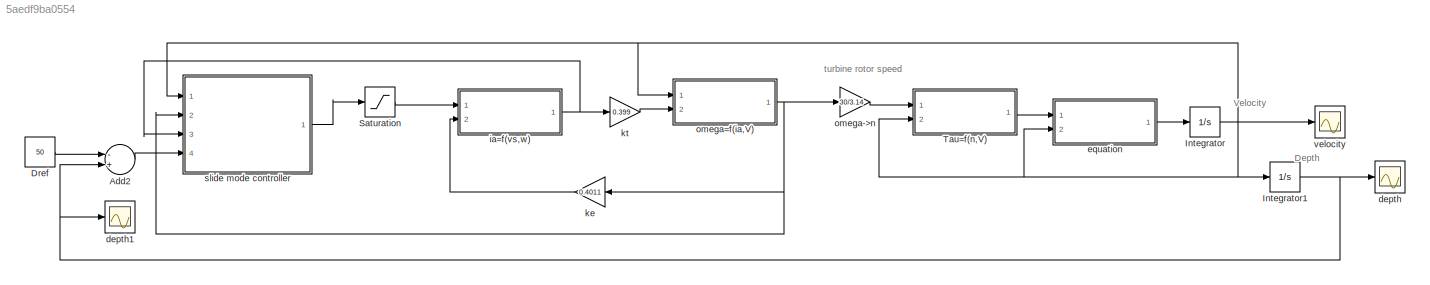
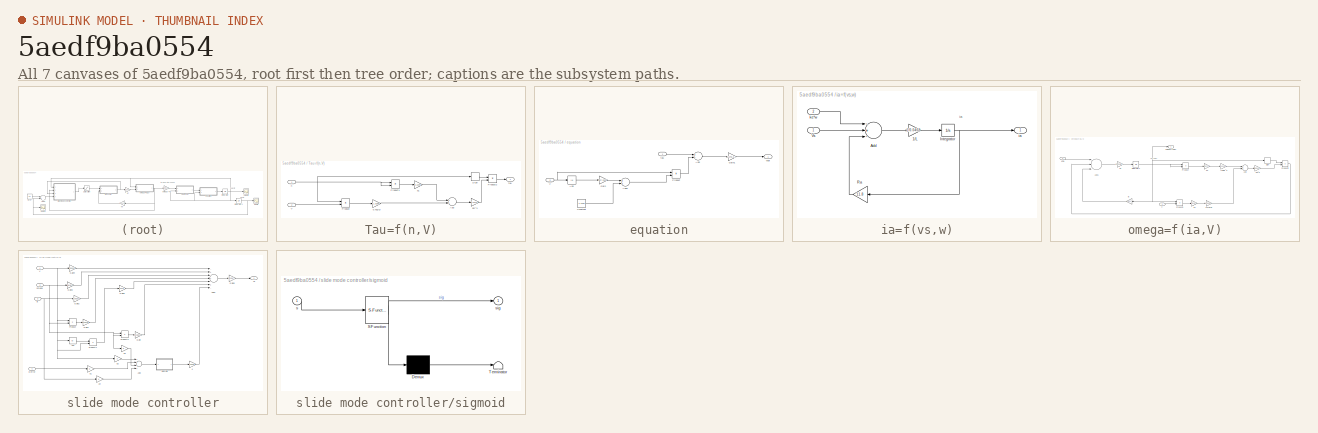
[diagram: thumbnail index - all 7 canvases of the model, root first then tree order]
MODEL slx_5aedf9ba0554
KIND model
CONFIG AbsTol = auto
CONFIG FixedStep = 1e-15
CONFIG MaxStep = auto
CONFIG MinStep = auto
CONFIG RelTol = 1e-3
CONFIG SampleTimeConstraint = Unconstrained
CONFIG Solver = VariableStepAuto
CONFIG SolverMode = Auto
CONFIG SolverName = VariableStepAuto
CONFIG StartTime = 0.0
CONFIG StopTime = 200
BLOCK [Sum] Add2
  InputSameDT = off
  Inputs = -+
  OutDataTypeStr = Inherit: Inherit via internal rule
  Ports = [2, 1]
  SaturateOnIntegerOverflow = off
BLOCK [Constant] Dref
  Value = 50
BLOCK [Integrator] Integrator
  Ports = [1, 1]
BLOCK [Integrator] Integrator1
  Ports = [1, 1]
BLOCK [Saturate] Saturation
  InputPortMap = u0
  LowerLimit = -100
  Ports = [1, 1]
  UpperLimit = 100
BLOCK [SubSystem] Tau=f(n,V)
  Ports = [2, 1]
  RequestExecContextInheritance = off
  Variant = off
BLOCK [Gain] Tau=f(n,V)/0.7a2//D
  Gain = -1.0366
  OutDataTypeStr = Inherit: Inherit via internal rule
  ParamDataTypeStr = Inherit: Inherit via internal rule
  SaturateOnIntegerOverflow = off
BLOCK [Sum] Tau=f(n,V)/Add
  InputSameDT = off
  OutDataTypeStr = Inherit: Inherit via internal rule
  Ports = [2, 1]
  SaturateOnIntegerOverflow = off
BLOCK [Product] Tau=f(n,V)/Product
  InputSameDT = off
  OutDataTypeStr = Inherit: Inherit via internal rule
  Ports = [2, 1]
  RndMeth = Floor
  SaturateOnIntegerOverflow = off
BLOCK [Product] Tau=f(n,V)/Product1
  InputSameDT = off
  OutDataTypeStr = Inherit: Inherit via internal rule
  Ports = [2, 1]
  RndMeth = Floor
  SaturateOnIntegerOverflow = off
BLOCK [Product] Tau=f(n,V)/Product2
  InputSameDT = off
  OutDataTypeStr = Inherit: Inherit via internal rule
  Ports = [2, 1]
  RndMeth = Floor
  SaturateOnIntegerOverflow = off
BLOCK [Signum] Tau=f(n,V)/Sign
BLOCK [Inport] Tau=f(n,V)/V
  IconDisplay = Port number
  Port = 2
BLOCK [Gain] Tau=f(n,V)/a1
  Gain = 0.2299
  OutDataTypeStr = Inherit: Inherit via internal rule
  ParamDataTypeStr = Inherit: Inherit via internal rule
  SaturateOnIntegerOverflow = off
BLOCK [Inport] Tau=f(n,V)/n
  IconDisplay = Port number
BLOCK [Gain] Tau=f(n,V)/pD^4
  Gain = 0.5471
  OutDataTypeStr = Inherit: Inherit via internal rule
  ParamDataTypeStr = Inherit: Inherit via internal rule
  SaturateOnIntegerOverflow = off
BLOCK [Outport] Tau=f(n,V)/tau
  IconDisplay = Port number
BLOCK [Scope] depth
  Ports = [1]
  ScopeSpecificationString = Simulink.scopes.TimeScopeBlockCfg('CurrentConfiguration', extmgr.ConfigurationSet(extmgr.Configuration('Core','General UI',true),extmgr.Configuration('Core','Source UI',true),extmgr.Configuration('Sources','WiredSimulink',true,'DataLoggingVariableName','ScopeData1'),extmgr.Configuration('Visuals','Time Domain',true,'SerializedDisplays',{struct('MinYLimReal','-6.28788','MaxYLimReal','56.59091','YLa...<+1449ch>
BLOCK [Scope] depth1
  Ports = [1]
  ScopeSpecificationString = Simulink.scopes.TimeScopeBlockCfg('CurrentConfiguration', extmgr.ConfigurationSet(extmgr.Configuration('Core','General UI',true),extmgr.Configuration('Core','Source UI',true),extmgr.Configuration('Sources','WiredSimulink',true,'DataLoggingVariableName','ScopeData1','DataLogging',true,'DataLoggingSaveFormat','Array'),extmgr.Configuration('Visuals','Time Domain',true,'SerializedDisplays',{struct('Mi...<+1502ch>
BLOCK [SubSystem] equation
  Ports = [2, 1]
  RequestExecContextInheritance = off
  Variant = off
BLOCK [Abs] equation/Abs
  SaturateOnIntegerOverflow = off
BLOCK [Sum] equation/Add
  InputSameDT = off
  Inputs = +-
  OutDataTypeStr = Inherit: Inherit via internal rule
  Ports = [2, 1]
  SaturateOnIntegerOverflow = off
BLOCK [Sum] equation/Add1
  InputSameDT = off
  OutDataTypeStr = Inherit: Inherit via internal rule
  Ports = [2, 1]
  SaturateOnIntegerOverflow = off
BLOCK [Constant] equation/Constant
  Value = 4.4132
BLOCK [Gain] equation/Gain
  Gain = 327.2375
  OutDataTypeStr = Inherit: Inherit via internal rule
  ParamDataTypeStr = Inherit: Inherit via internal rule
  SaturateOnIntegerOverflow = off
BLOCK [Gain] equation/Gain1
  Gain = 1/275.5760
  OutDataTypeStr = Inherit: Inherit via internal rule
  ParamDataTypeStr = Inherit: Inherit via internal rule
  SaturateOnIntegerOverflow = off
BLOCK [Product] equation/Product
  InputSameDT = off
  OutDataTypeStr = Inherit: Inherit via internal rule
  Ports = [2, 1]
  RndMeth = Floor
  SaturateOnIntegerOverflow = off
BLOCK [Inport] equation/V
  IconDisplay = Port number
  Port = 2
BLOCK [Inport] equation/tau
  IconDisplay = Port number
BLOCK [Outport] equation/vdot
  IconDisplay = Port number
BLOCK [SubSystem] ia=f(vs,w)
  Ports = [2, 1]
  RequestExecContextInheritance = off
  Variant = off
BLOCK [Gain] ia=f(vs,w)/1//L
  Gain = 1/0.0468
  OutDataTypeStr = Inherit: Inherit via internal rule
  ParamDataTypeStr = Inherit: Inherit via internal rule
  SaturateOnIntegerOverflow = off
BLOCK [Sum] ia=f(vs,w)/Add
  InputSameDT = off
  Inputs = -+-
  OutDataTypeStr = Inherit: Inherit via internal rule
  Ports = [3, 1]
  SaturateOnIntegerOverflow = off
BLOCK [Integrator] ia=f(vs,w)/Integrator
  Ports = [1, 1]
BLOCK [Gain] ia=f(vs,w)/Ra
  Gain = 11.8
  OutDataTypeStr = Inherit: Inherit via internal rule
  ParamDataTypeStr = Inherit: Inherit via internal rule
  SaturateOnIntegerOverflow = off
BLOCK [Inport] ia=f(vs,w)/Vs
  IconDisplay = Port number
BLOCK [Outport] ia=f(vs,w)/ia
  IconDisplay = Port number
BLOCK [Inport] ia=f(vs,w)/ke*w
  IconDisplay = Port number
  Port = 2
BLOCK [Gain] ke
  Gain = 0.4011
  OutDataTypeStr = Inherit: Inherit via internal rule
  ParamDataTypeStr = Inherit: Inherit via internal rule
  SaturateOnIntegerOverflow = off
BLOCK [Gain] kt
  Gain = 0.399
  OutDataTypeStr = Inherit: Inherit via internal rule
  ParamDataTypeStr = Inherit: Inherit via internal rule
  SaturateOnIntegerOverflow = off
BLOCK [Gain] omega->n
  Gain = 30/3.14
  OutDataTypeStr = Inherit: Inherit via internal rule
  ParamDataTypeStr = Inherit: Inherit via internal rule
  SaturateOnIntegerOverflow = off
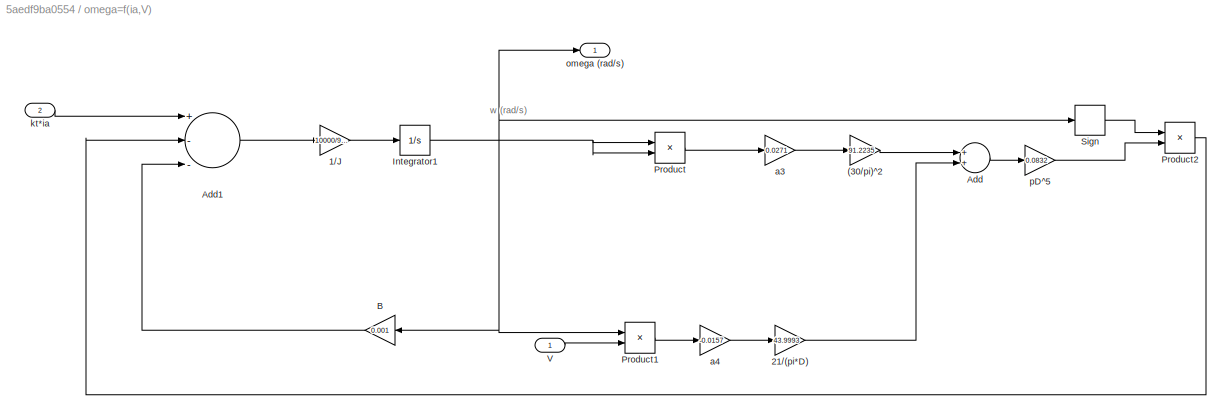
BLOCK [SubSystem] omega=f(ia,V)
  Ports = [2, 1]
  RequestExecContextInheritance = off
  Variant = off
BLOCK [Gain] omega=f(ia,V)/(30//pi)^2
  Gain = 91.2235
  OutDataTypeStr = Inherit: Inherit via internal rule
  ParamDataTypeStr = Inherit: Inherit via internal rule
  SaturateOnIntegerOverflow = off
BLOCK [Gain] omega=f(ia,V)/1//J
  Gain = 10000/9.275
  OutDataTypeStr = Inherit: Inherit via internal rule
  ParamDataTypeStr = Inherit: Inherit via internal rule
  SaturateOnIntegerOverflow = off
BLOCK [Gain] omega=f(ia,V)/21//(pi*D)
  Gain = 43.9993
  OutDataTypeStr = Inherit: Inherit via internal rule
  ParamDataTypeStr = Inherit: Inherit via internal rule
  SaturateOnIntegerOverflow = off
BLOCK [Sum] omega=f(ia,V)/Add
  InputSameDT = off
  OutDataTypeStr = Inherit: Inherit via internal rule
  Ports = [2, 1]
  SaturateOnIntegerOverflow = off
BLOCK [Sum] omega=f(ia,V)/Add1
  InputSameDT = off
  Inputs = +--
  OutDataTypeStr = Inherit: Inherit via internal rule
  Ports = [3, 1]
  SaturateOnIntegerOverflow = off
BLOCK [Gain] omega=f(ia,V)/B
  Gain = 0.001
  OutDataTypeStr = Inherit: Inherit via internal rule
  ParamDataTypeStr = Inherit: Inherit via internal rule
  SaturateOnIntegerOverflow = off
BLOCK [Integrator] omega=f(ia,V)/Integrator1
  Ports = [1, 1]
BLOCK [Product] omega=f(ia,V)/Product
  InputSameDT = off
  OutDataTypeStr = Inherit: Inherit via internal rule
  Ports = [2, 1]
  RndMeth = Floor
  SaturateOnIntegerOverflow = off
BLOCK [Product] omega=f(ia,V)/Product1
  InputSameDT = off
  OutDataTypeStr = Inherit: Inherit via internal rule
  Ports = [2, 1]
  RndMeth = Floor
  SaturateOnIntegerOverflow = off
BLOCK [Product] omega=f(ia,V)/Product2
  InputSameDT = off
  OutDataTypeStr = Inherit: Inherit via internal rule
  Ports = [2, 1]
  RndMeth = Floor
  SaturateOnIntegerOverflow = off
BLOCK [Signum] omega=f(ia,V)/Sign
BLOCK [Inport] omega=f(ia,V)/V
  IconDisplay = Port number
BLOCK [Gain] omega=f(ia,V)/a3
  Gain = 0.0271
  OutDataTypeStr = Inherit: Inherit via internal rule
  ParamDataTypeStr = Inherit: Inherit via internal rule
  SaturateOnIntegerOverflow = off
BLOCK [Gain] omega=f(ia,V)/a4
  Gain = -0.0157
  OutDataTypeStr = Inherit: Inherit via internal rule
  ParamDataTypeStr = Inherit: Inherit via internal rule
  SaturateOnIntegerOverflow = off
BLOCK [Inport] omega=f(ia,V)/kt*ia
  IconDisplay = Port number
  Port = 2
BLOCK [Outport] omega=f(ia,V)/omega (rad//s)
  IconDisplay = Port number
BLOCK [Gain] omega=f(ia,V)/pD^5
  Gain = 0.0832
  OutDataTypeStr = Inherit: Inherit via internal rule
  ParamDataTypeStr = Inherit: Inherit via internal rule
  SaturateOnIntegerOverflow = off
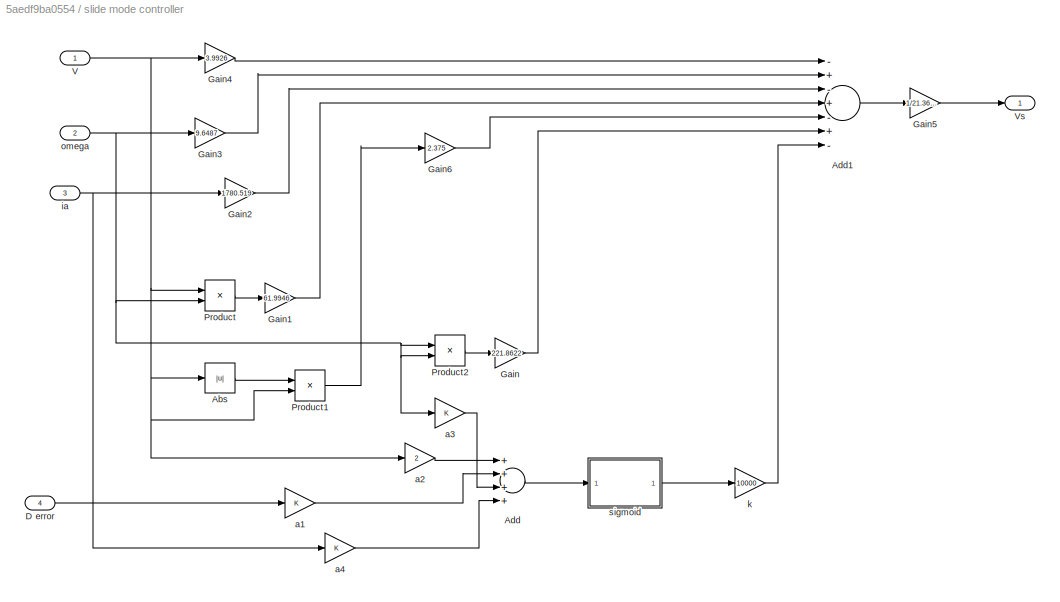
BLOCK [SubSystem] slide mode controller
  Ports = [4, 1]
  RequestExecContextInheritance = off
  Variant = off
BLOCK [Abs] slide mode controller/Abs
  SaturateOnIntegerOverflow = off
BLOCK [Sum] slide mode controller/Add
  InputSameDT = off
  Inputs = ++++
  OutDataTypeStr = Inherit: Inherit via internal rule
  Ports = [4, 1]
  SaturateOnIntegerOverflow = off
BLOCK [Sum] slide mode controller/Add1
  InputSameDT = off
  Inputs = -+-+-+-
  OutDataTypeStr = Inherit: Inherit via internal rule
  Ports = [7, 1]
  SaturateOnIntegerOverflow = off
BLOCK [Inport] slide mode controller/D error
  IconDisplay = Port number
  Port = 4
BLOCK [Gain] slide mode controller/Gain
  Gain = 221.8622
  OutDataTypeStr = Inherit: Inherit via internal rule
  ParamDataTypeStr = Inherit: Inherit via internal rule
  SaturateOnIntegerOverflow = off
BLOCK [Gain] slide mode controller/Gain1
  Gain = 61.9946
  OutDataTypeStr = Inherit: Inherit via internal rule
  ParamDataTypeStr = Inherit: Inherit via internal rule
  SaturateOnIntegerOverflow = off
BLOCK [Gain] slide mode controller/Gain2
  Gain = 1780.519
  OutDataTypeStr = Inherit: Inherit via internal rule
  ParamDataTypeStr = Inherit: Inherit via internal rule
  SaturateOnIntegerOverflow = off
BLOCK [Gain] slide mode controller/Gain3
  Gain = 9.6487
  OutDataTypeStr = Inherit: Inherit via internal rule
  ParamDataTypeStr = Inherit: Inherit via internal rule
  SaturateOnIntegerOverflow = off
BLOCK [Gain] slide mode controller/Gain4
  Gain = 3.9926
  OutDataTypeStr = Inherit: Inherit via internal rule
  ParamDataTypeStr = Inherit: Inherit via internal rule
  SaturateOnIntegerOverflow = off
BLOCK [Gain] slide mode controller/Gain5
  Gain = 1/21.3675
  OutDataTypeStr = Inherit: Inherit via internal rule
  ParamDataTypeStr = Inherit: Inherit via internal rule
  SaturateOnIntegerOverflow = off
BLOCK [Gain] slide mode controller/Gain6
  Gain = 2.375
  OutDataTypeStr = Inherit: Inherit via internal rule
  ParamDataTypeStr = Inherit: Inherit via internal rule
  SaturateOnIntegerOverflow = off
BLOCK [Product] slide mode controller/Product
  InputSameDT = off
  OutDataTypeStr = Inherit: Inherit via internal rule
  Ports = [2, 1]
  RndMeth = Floor
  SaturateOnIntegerOverflow = off
BLOCK [Product] slide mode controller/Product1
  InputSameDT = off
  OutDataTypeStr = Inherit: Inherit via internal rule
  Ports = [2, 1]
  RndMeth = Floor
  SaturateOnIntegerOverflow = off
BLOCK [Product] slide mode controller/Product2
  InputSameDT = off
  OutDataTypeStr = Inherit: Inherit via internal rule
  Ports = [2, 1]
  RndMeth = Floor
  SaturateOnIntegerOverflow = off
BLOCK [Inport] slide mode controller/V
  IconDisplay = Port number
BLOCK [Outport] slide mode controller/Vs
  IconDisplay = Port number
BLOCK [Gain] slide mode controller/a1
  OutDataTypeStr = Inherit: Inherit via internal rule
  ParamDataTypeStr = Inherit: Inherit via internal rule
  SaturateOnIntegerOverflow = off
BLOCK [Gain] slide mode controller/a2
  Gain = 2
  OutDataTypeStr = Inherit: Inherit via internal rule
  ParamDataTypeStr = Inherit: Inherit via internal rule
  SaturateOnIntegerOverflow = off
BLOCK [Gain] slide mode controller/a3
  OutDataTypeStr = Inherit: Inherit via internal rule
  ParamDataTypeStr = Inherit: Inherit via internal rule
  SaturateOnIntegerOverflow = off
BLOCK [Gain] slide mode controller/a4
  OutDataTypeStr = Inherit: Inherit via internal rule
  ParamDataTypeStr = Inherit: Inherit via internal rule
  SaturateOnIntegerOverflow = off
BLOCK [Inport] slide mode controller/ia
  IconDisplay = Port number
  Port = 3
BLOCK [Gain] slide mode controller/k
  Gain = 10000
  OutDataTypeStr = Inherit: Inherit via internal rule
  ParamDataTypeStr = Inherit: Inherit via internal rule
  SaturateOnIntegerOverflow = off
BLOCK [Inport] slide mode controller/omega
  IconDisplay = Port number
  Port = 2
BLOCK [SubSystem] slide mode controller/sigmoid
  ErrorFcn = Stateflow.Translate.translate
  PermitHierarchicalResolution = ExplicitOnly
  Ports = [1, 1]
  RequestExecContextInheritance = off
  SFBlockType = MATLAB Function
  TreatAsAtomicUnit = on
  Variant = off
BLOCK [Demux] slide mode controller/sigmoid/ Demux 
  Outputs = 1
  Ports = [1, 1]
BLOCK [S-Function] slide mode controller/sigmoid/ SFunction 
  EnableBusSupport = on
  FunctionName = sf_sfun
  PortCounts = [1 2]
  Ports = [1, 2]
  SFunctionDeploymentMode = off
  Tag = Stateflow S-Function Slidingmode_Controller 2
BLOCK [Terminator] slide mode controller/sigmoid/ Terminator 
BLOCK [Inport] slide mode controller/sigmoid/s
  IconDisplay = Port number
BLOCK [Outport] slide mode controller/sigmoid/sig
  IconDisplay = Port number
BLOCK [Scope] velocity
  Ports = [1]
  ScopeSpecificationString = Simulink.scopes.TimeScopeBlockCfg('CurrentConfiguration', extmgr.ConfigurationSet(extmgr.Configuration('Core','General UI',true),extmgr.Configuration('Core','Source UI',true),extmgr.Configuration('Sources','WiredSimulink',true),extmgr.Configuration('Visuals','Time Domain',true,'SerializedDisplays',{struct('MinYLimReal','-0.08029','MaxYLimReal','0.72265','YLabelReal','','MinYLimMag','0.00000','MaxY...<+1407ch>
ANNOTATION (root): Depth
ANNOTATION (root): Velocity
ANNOTATION (root): turbine rotor speed
ANNOTATION ia=f(vs,w): ia
ANNOTATION omega=f(ia,V): w (rad/s)
LINE Add2:1 -> slide mode controller:4
LINE Dref:1 -> Add2:1
NET Integrator1:1 -> Add2:2, depth1:1, depth:1
NET Integrator:1 -> Integrator1:1, Tau=f(n,V):2, equation:2, omega=f(ia,V):1, slide mode controller:1, velocity:1
LINE Saturation:1 -> ia=f(vs,w):1
LINE Tau=f(n,V)/0.7a2//D:1 -> Tau=f(n,V)/Add:2
LINE Tau=f(n,V)/Add:1 -> Tau=f(n,V)/pD^4:1
LINE Tau=f(n,V)/Product1:1 -> Tau=f(n,V)/a1:1
LINE Tau=f(n,V)/Product2:1 -> Tau=f(n,V)/tau:1
LINE Tau=f(n,V)/Product:1 -> Tau=f(n,V)/0.7a2//D:1
LINE Tau=f(n,V)/Sign:1 -> Tau=f(n,V)/Product2:1
LINE Tau=f(n,V)/V:1 -> Tau=f(n,V)/Product:2
LINE Tau=f(n,V)/a1:1 -> Tau=f(n,V)/Add:1
NET Tau=f(n,V)/n:1 -> Tau=f(n,V)/Product1:1, Tau=f(n,V)/Product1:2, Tau=f(n,V)/Product:1, Tau=f(n,V)/Sign:1
LINE Tau=f(n,V)/pD^4:1 -> Tau=f(n,V)/Product2:2
LINE Tau=f(n,V):1 -> equation:1
LINE equation/Abs:1 -> equation/Gain:1
LINE equation/Add1:1 -> equation/Product:2
LINE equation/Add:1 -> equation/Gain1:1
LINE equation/Constant:1 -> equation/Add1:2
LINE equation/Gain1:1 -> equation/vdot:1
LINE equation/Gain:1 -> equation/Add1:1
LINE equation/Product:1 -> equation/Add:2
NET equation/V:1 -> equation/Abs:1, equation/Product:1
LINE equation/tau:1 -> equation/Add:1
LINE equation:1 -> Integrator:1
LINE ia=f(vs,w)/1//L:1 -> ia=f(vs,w)/Integrator:1
LINE ia=f(vs,w)/Add:1 -> ia=f(vs,w)/1//L:1
NET ia=f(vs,w)/Integrator:1 -> ia=f(vs,w)/Ra:1, ia=f(vs,w)/ia:1
LINE ia=f(vs,w)/Ra:1 -> ia=f(vs,w)/Add:3
LINE ia=f(vs,w)/Vs:1 -> ia=f(vs,w)/Add:2
LINE ia=f(vs,w)/ke*w:1 -> ia=f(vs,w)/Add:1
NET ia=f(vs,w):1 -> kt:1, slide mode controller:3
LINE ke:1 -> ia=f(vs,w):2
LINE kt:1 -> omega=f(ia,V):2
LINE omega->n:1 -> Tau=f(n,V):1
LINE omega=f(ia,V)/(30//pi)^2:1 -> omega=f(ia,V)/Add:1
LINE omega=f(ia,V)/1//J:1 -> omega=f(ia,V)/Integrator1:1
LINE omega=f(ia,V)/21//(pi*D):1 -> omega=f(ia,V)/Add:2
LINE omega=f(ia,V)/Add1:1 -> omega=f(ia,V)/1//J:1
LINE omega=f(ia,V)/Add:1 -> omega=f(ia,V)/pD^5:1
LINE omega=f(ia,V)/B:1 -> omega=f(ia,V)/Add1:3
NET omega=f(ia,V)/Integrator1:1 -> omega=f(ia,V)/B:1, omega=f(ia,V)/Product1:1, omega=f(ia,V)/Product:1, omega=f(ia,V)/Product:2, omega=f(ia,V)/Sign:1, omega=f(ia,V)/omega (rad//s):1
LINE omega=f(ia,V)/Product1:1 -> omega=f(ia,V)/a4:1
LINE omega=f(ia,V)/Product2:1 -> omega=f(ia,V)/Add1:2
LINE omega=f(ia,V)/Product:1 -> omega=f(ia,V)/a3:1
LINE omega=f(ia,V)/Sign:1 -> omega=f(ia,V)/Product2:1
LINE omega=f(ia,V)/V:1 -> omega=f(ia,V)/Product1:2
LINE omega=f(ia,V)/a3:1 -> omega=f(ia,V)/(30//pi)^2:1
LINE omega=f(ia,V)/a4:1 -> omega=f(ia,V)/21//(pi*D):1
LINE omega=f(ia,V)/kt*ia:1 -> omega=f(ia,V)/Add1:1
LINE omega=f(ia,V)/pD^5:1 -> omega=f(ia,V)/Product2:2
NET omega=f(ia,V):1 -> ke:1, omega->n:1, slide mode controller:2
LINE slide mode controller/Abs:1 -> slide mode controller/Product1:1
LINE slide mode controller/Add1:1 -> slide mode controller/Gain5:1
LINE slide mode controller/Add:1 -> slide mode controller/sigmoid:1
LINE slide mode controller/D error:1 -> slide mode controller/a1:1
LINE slide mode controller/Gain1:1 -> slide mode controller/Add1:4
LINE slide mode controller/Gain2:1 -> slide mode controller/Add1:3
LINE slide mode controller/Gain3:1 -> slide mode controller/Add1:2
LINE slide mode controller/Gain4:1 -> slide mode controller/Add1:1
LINE slide mode controller/Gain5:1 -> slide mode controller/Vs:1
LINE slide mode controller/Gain6:1 -> slide mode controller/Add1:5
LINE slide mode controller/Gain:1 -> slide mode controller/Add1:6
LINE slide mode controller/Product1:1 -> slide mode controller/Gain6:1
LINE slide mode controller/Product2:1 -> slide mode controller/Gain:1
LINE slide mode controller/Product:1 -> slide mode controller/Gain1:1
NET slide mode controller/V:1 -> slide mode controller/Abs:1, slide mode controller/Gain4:1, slide mode controller/Product1:2, slide mode controller/Product:1, slide mode controller/a2:1
LINE slide mode controller/a1:1 -> slide mode controller/Add:2
LINE slide mode controller/a2:1 -> slide mode controller/Add:1
LINE slide mode controller/a3:1 -> slide mode controller/Add:3
LINE slide mode controller/a4:1 -> slide mode controller/Add:4
NET slide mode controller/ia:1 -> slide mode controller/Gain2:1, slide mode controller/a4:1
LINE slide mode controller/k:1 -> slide mode controller/Add1:7
NET slide mode controller/omega:1 -> slide mode controller/Gain3:1, slide mode controller/Product2:1, slide mode controller/Product2:2, slide mode controller/Product:2, slide mode controller/a3:1
LINE slide mode controller/sigmoid:1 -> slide mode controller/k:1
LINE slide mode controller:1 -> Saturation:1
note: NET lines group one-source signal fan-out (src -> all destinations, sorted); 1:1 wires keep LINE
CHART slide mode controller/sigmoid states=1 transitions=1
  STATE_LABEL 'eML_blk_kernel()'
  STATE_LABEL 'SCRIPT:\nfunction sig = fcn(s)\n%#codegen\nif s<=-1\n    u=-1;\nelse if s>-1&&s<=1\n        u=s;\n    else\n        u=1;\n    end\nend        \n\nsig = u;'
